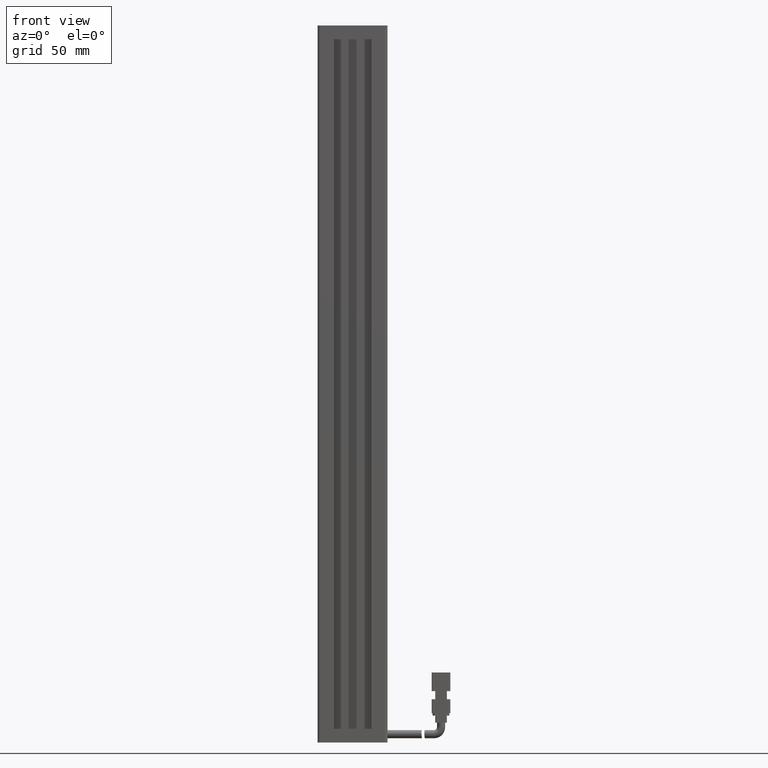
[diagram: clean part render]
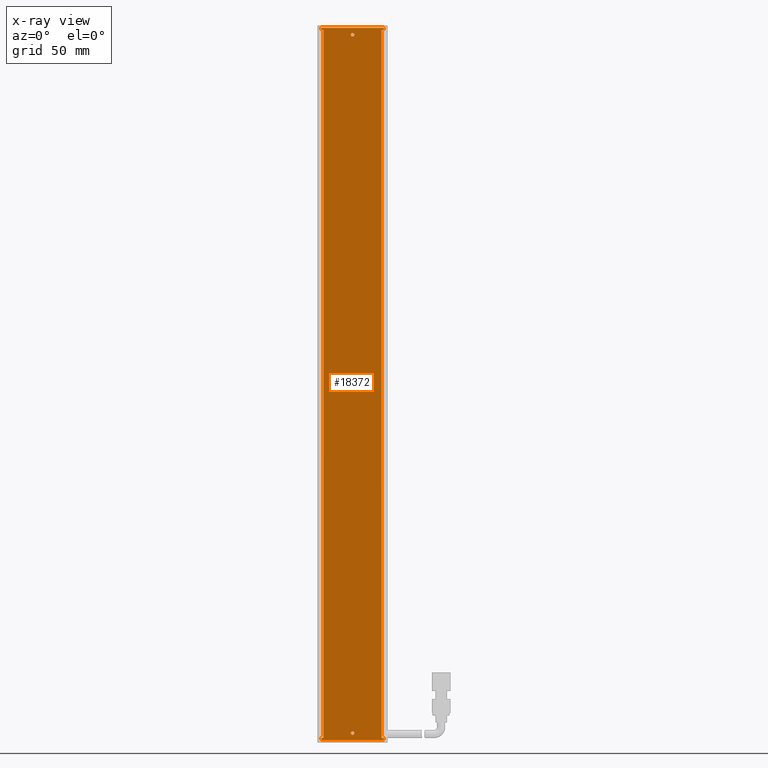
[diagram: x-ray — body ghosted, one internal face saturated and labeled with its STEP entity id]
A machine part, front view, then the same camera in x-ray: the body is ghosted and one INTERNAL B-rep face — a face not visible from any outside direction — is saturated and labeled: STEP entity #18372.
In plain terms, the highlighted planar face has unit normal (-0, 1, 0).
Its self-contained STEP definition (entity closure, byte-faithful):
#90 = VECTOR ( 'NONE', #8149, 1000.000000000000000 ) ;
#948 = AXIS2_PLACEMENT_3D ( 'NONE', #33537, #5164, #38325 ) ;
#1197 = CARTESIAN_POINT ( 'NONE',  ( 25.92537974683541800, 32.19594479660386100, 36.99999999999999300 ) ) ;
#1608 = LINE ( 'NONE', #47231, #14261 ) ;
#1644 = CARTESIAN_POINT ( 'NONE',  ( 27.52537974683538400, 32.19594479660386100, 38.00000000000003600 ) ) ;
#3374 = EDGE_CURVE ( 'NONE', #42633, #24721, #19030, .T. ) ;
#3476 = VECTOR ( 'NONE', #23441, 1000.000000000000000 ) ;
#3728 = EDGE_CURVE ( 'NONE', #15334, #55474, #37444, .T. ) ;
#4228 = VECTOR ( 'NONE', #38939, 1000.000000000000000 ) ;
#4721 = CARTESIAN_POINT ( 'NONE',  ( 27.52537974683541200, 32.19594479660386100, 38.00000000000003600 ) ) ;
#4784 = LINE ( 'NONE', #29316, #15907 ) ;
#5164 = DIRECTION ( 'NONE',  ( -0.0000000000000000000, -1.000000000000000000, -0.0000000000000000000 ) ) ;
#5824 = EDGE_CURVE ( 'NONE', #22413, #24452, #1608, .T. ) ;
#6212 = LINE ( 'NONE', #47616, #55113 ) ;
#6445 = AXIS2_PLACEMENT_3D ( 'NONE', #24557, #57628, #29323 ) ;
#6561 = EDGE_LOOP ( 'NONE', ( #49902, #19118 ) ) ;
#7205 = CARTESIAN_POINT ( 'NONE',  ( 40.92537974683542500, 32.19594479660386800, -267.0000000000000000 ) ) ;
#7509 = ORIENTED_EDGE ( 'NONE', *, *, #3374, .T. ) ;
#7885 = ORIENTED_EDGE ( 'NONE', *, *, #37988, .T. ) ;
#8149 = DIRECTION ( 'NONE',  ( 5.551115123125781500E-017, 0.0000000000000000000, 1.000000000000000000 ) ) ;
#8323 = FACE_BOUND ( 'NONE', #44951, .T. ) ;
#9795 = CIRCLE ( 'NONE', #52921, 0.7499999999999729100 ) ;
#9806 = LINE ( 'NONE', #1644, #22444 ) ;
#10604 = CARTESIAN_POINT ( 'NONE',  ( 40.92537974683541800, 32.19594479660386100, 35.00000000000002800 ) ) ;
#11256 = DIRECTION ( 'NONE',  ( -0.0000000000000000000, 1.000000000000000000, 0.0000000000000000000 ) ) ;
#11388 = VERTEX_POINT ( 'NONE', #42868 ) ;
#11600 = ORIENTED_EDGE ( 'NONE', *, *, #32679, .F. ) ;
#12266 = LINE ( 'NONE', #14413, #48557 ) ;
#13234 = EDGE_CURVE ( 'NONE', #24452, #56481, #49234, .T. ) ;
#14031 = EDGE_CURVE ( 'NONE', #52290, #38119, #12266, .T. ) ;
#14261 = VECTOR ( 'NONE', #56971, 1000.000000000000000 ) ;
#14398 = LINE ( 'NONE', #22312, #38139 ) ;
#14413 = CARTESIAN_POINT ( 'NONE',  ( 53.42537974683542500, 32.19594479660386800, 38.99999999999999300 ) ) ;
#15334 = VERTEX_POINT ( 'NONE', #46007 ) ;
#15378 = DIRECTION ( 'NONE',  ( 0.0000000000000000000, 0.0000000000000000000, 1.000000000000000000 ) ) ;
#15907 = VECTOR ( 'NONE', #34030, 1000.000000000000000 ) ;
#16021 = CARTESIAN_POINT ( 'NONE',  ( 40.92537974683536800, 32.19594479660386100, -264.2500000000000000 ) ) ;
#16150 = CARTESIAN_POINT ( 'NONE',  ( 28.42537974683542100, 32.19594479660386800, -267.0000000000000000 ) ) ;
#17243 = CARTESIAN_POINT ( 'NONE',  ( 54.32537974683541600, 32.19594479660386100, 38.00000000000003600 ) ) ;
#18372 = ADVANCED_FACE ( 'NONE', ( #33487, #8323, #19454 ), #25191, .F. ) ;
#18889 = EDGE_CURVE ( 'NONE', #41007, #46024, #37944, .T. ) ;
#19030 = LINE ( 'NONE', #39678, #30123 ) ;
#19118 = ORIENTED_EDGE ( 'NONE', *, *, #3728, .F. ) ;
#19193 = CARTESIAN_POINT ( 'NONE',  ( 27.52537974683536600, 32.19594479660386800, -267.0000000000000000 ) ) ;
#19412 = CIRCLE ( 'NONE', #59456, 0.7500000000000006700 ) ;
#19454 = FACE_BOUND ( 'NONE', #6561, .T. ) ;
#20012 = EDGE_CURVE ( 'NONE', #46024, #41007, #19412, .T. ) ;
#20802 = CARTESIAN_POINT ( 'NONE',  ( 40.92537974683541800, 32.19594479660386100, 35.75000000000002800 ) ) ;
#21205 = ORIENTED_EDGE ( 'NONE', *, *, #13234, .F. ) ;
#21414 = VERTEX_POINT ( 'NONE', #47049 ) ;
#22114 = CARTESIAN_POINT ( 'NONE',  ( 53.42537974683542500, 32.19594479660386100, -267.0000000000000000 ) ) ;
#22312 = CARTESIAN_POINT ( 'NONE',  ( 40.92537974683542500, 32.19594479660386800, 36.99999999999999300 ) ) ;
#22413 = VERTEX_POINT ( 'NONE', #4721 ) ;
#22444 = VECTOR ( 'NONE', #30088, 1000.000000000000000 ) ;
#22852 = ORIENTED_EDGE ( 'NONE', *, *, #28797, .T. ) ;
#23441 = DIRECTION ( 'NONE',  ( 1.000000000000000000, 0.0000000000000000000, 0.0000000000000000000 ) ) ;
#23648 = CARTESIAN_POINT ( 'NONE',  ( 54.32537974683541600, 32.19594479660386100, 38.00000000000003600 ) ) ;
#24123 = ORIENTED_EDGE ( 'NONE', *, *, #18889, .F. ) ;
#24239 = EDGE_CURVE ( 'NONE', #21414, #50593, #36484, .T. ) ;
#24452 = VERTEX_POINT ( 'NONE', #23648 ) ;
#24557 = CARTESIAN_POINT ( 'NONE',  ( 40.92537974683536800, 32.19594479660386100, -264.9999999999999400 ) ) ;
#24721 = VERTEX_POINT ( 'NONE', #16150 ) ;
#25091 = ORIENTED_EDGE ( 'NONE', *, *, #43817, .F. ) ;
#25191 = PLANE ( 'NONE',  #29982 ) ;
#25265 = ORIENTED_EDGE ( 'NONE', *, *, #20012, .F. ) ;
#25383 = EDGE_CURVE ( 'NONE', #55474, #15334, #9795, .T. ) ;
#25734 = ORIENTED_EDGE ( 'NONE', *, *, #43511, .T. ) ;
#26743 = EDGE_CURVE ( 'NONE', #38119, #46529, #52369, .T. ) ;
#26900 = DIRECTION ( 'NONE',  ( -0.0000000000000000000, -1.000000000000000000, -0.0000000000000000000 ) ) ;
#27029 = EDGE_LOOP ( 'NONE', ( #53050, #56539, #22852, #21205, #61425, #11600, #25734, #7509, #7885, #52957, #27390, #25091 ) ) ;
#27291 = CARTESIAN_POINT ( 'NONE',  ( 53.42537974683542500, 32.19594479660386800, 36.99999999999999300 ) ) ;
#27390 = ORIENTED_EDGE ( 'NONE', *, *, #29620, .F. ) ;
#28797 = EDGE_CURVE ( 'NONE', #52290, #56481, #53128, .T. ) ;
#29316 = CARTESIAN_POINT ( 'NONE',  ( 54.32537974683541600, 32.19594479660386100, 38.00000000000003600 ) ) ;
#29323 = DIRECTION ( 'NONE',  ( 0.0000000000000000000, 0.0000000000000000000, 1.000000000000000000 ) ) ;
#29466 = CARTESIAN_POINT ( 'NONE',  ( 28.42537974683542100, 32.19594479660386100, 36.99999999999999300 ) ) ;
#29620 = EDGE_CURVE ( 'NONE', #11388, #21414, #6212, .T. ) ;
#29721 = LINE ( 'NONE', #7205, #40823 ) ;
#29982 = AXIS2_PLACEMENT_3D ( 'NONE', #39660, #11256, #44408 ) ;
#30088 = DIRECTION ( 'NONE',  ( 5.551115123125781500E-017, 0.0000000000000000000, 1.000000000000000000 ) ) ;
#30123 = VECTOR ( 'NONE', #39878, 1000.000000000000000 ) ;
#31861 = DIRECTION ( 'NONE',  ( 1.000000000000000000, 0.0000000000000000000, -0.0000000000000000000 ) ) ;
#31980 = CARTESIAN_POINT ( 'NONE',  ( 27.52537974683538400, 32.19594479660386100, 38.00000000000003600 ) ) ;
#32530 = VERTEX_POINT ( 'NONE', #56780 ) ;
#32679 = EDGE_CURVE ( 'NONE', #32530, #22413, #9806, .T. ) ;
#33487 = FACE_OUTER_BOUND ( 'NONE', #27029, .T. ) ;
#33537 = CARTESIAN_POINT ( 'NONE',  ( 40.92537974683541800, 32.19594479660386100, 35.00000000000002800 ) ) ;
#34030 = DIRECTION ( 'NONE',  ( -5.551115123125781500E-017, -0.0000000000000000000, -1.000000000000000000 ) ) ;
#36484 = LINE ( 'NONE', #31980, #90 ) ;
#36668 = VECTOR ( 'NONE', #55119, 1000.000000000000000 ) ;
#37444 = CIRCLE ( 'NONE', #6445, 0.7499999999999729100 ) ;
#37944 = CIRCLE ( 'NONE', #948, 0.7500000000000006700 ) ;
#37988 = EDGE_CURVE ( 'NONE', #24721, #50593, #29721, .T. ) ;
#38119 = VERTEX_POINT ( 'NONE', #22114 ) ;
#38139 = VECTOR ( 'NONE', #31861, 1000.000000000000000 ) ;
#38325 = DIRECTION ( 'NONE',  ( 0.0000000000000000000, 0.0000000000000000000, 1.000000000000000000 ) ) ;
#38939 = DIRECTION ( 'NONE',  ( 1.000000000000000000, -0.0000000000000000000, 0.0000000000000000000 ) ) ;
#39660 = CARTESIAN_POINT ( 'NONE',  ( 54.32537974683541600, 32.19594479660386100, 38.00000000000003600 ) ) ;
#39678 = CARTESIAN_POINT ( 'NONE',  ( 28.42537974683542100, 32.19594479660386800, 38.99999999999999300 ) ) ;
#39878 = DIRECTION ( 'NONE',  ( -0.0000000000000000000, -0.0000000000000000000, -1.000000000000000000 ) ) ;
#40823 = VECTOR ( 'NONE', #45067, 1000.000000000000000 ) ;
#41007 = VERTEX_POINT ( 'NONE', #57677 ) ;
#41680 = CARTESIAN_POINT ( 'NONE',  ( 54.32537974683541600, 32.19594479660386100, 36.99999999999999300 ) ) ;
#42633 = VERTEX_POINT ( 'NONE', #29466 ) ;
#42868 = CARTESIAN_POINT ( 'NONE',  ( 54.32537974683538100, 32.19594479660386100, -267.9999999999999400 ) ) ;
#43511 = EDGE_CURVE ( 'NONE', #32530, #42633, #14398, .T. ) ;
#43711 = DIRECTION ( 'NONE',  ( -0.0000000000000000000, -1.000000000000000000, -0.0000000000000000000 ) ) ;
#43817 = EDGE_CURVE ( 'NONE', #46529, #11388, #4784, .T. ) ;
#44408 = DIRECTION ( 'NONE',  ( 5.551115123125781500E-017, 0.0000000000000000000, 1.000000000000000000 ) ) ;
#44951 = EDGE_LOOP ( 'NONE', ( #25265, #24123 ) ) ;
#45067 = DIRECTION ( 'NONE',  ( -1.000000000000000000, -0.0000000000000000000, 0.0000000000000000000 ) ) ;
#46007 = CARTESIAN_POINT ( 'NONE',  ( 40.92537974683536800, 32.19594479660386100, -265.7499999999999400 ) ) ;
#46024 = VERTEX_POINT ( 'NONE', #20802 ) ;
#46529 = VERTEX_POINT ( 'NONE', #57734 ) ;
#47049 = CARTESIAN_POINT ( 'NONE',  ( 27.52537974683536600, 32.19594479660386100, -267.9999999999999400 ) ) ;
#47231 = CARTESIAN_POINT ( 'NONE',  ( 54.32537974683541600, 32.19594479660386100, 38.00000000000003600 ) ) ;
#47616 = CARTESIAN_POINT ( 'NONE',  ( 54.32537974683540900, 32.19594479660386100, -267.9999999999999400 ) ) ;
#48557 = VECTOR ( 'NONE', #52302, 1000.000000000000000 ) ;
#49234 = LINE ( 'NONE', #17243, #36668 ) ;
#49902 = ORIENTED_EDGE ( 'NONE', *, *, #25383, .F. ) ;
#50593 = VERTEX_POINT ( 'NONE', #19193 ) ;
#52290 = VERTEX_POINT ( 'NONE', #27291 ) ;
#52302 = DIRECTION ( 'NONE',  ( -0.0000000000000000000, -0.0000000000000000000, -1.000000000000000000 ) ) ;
#52369 = LINE ( 'NONE', #56556, #3476 ) ;
#52921 = AXIS2_PLACEMENT_3D ( 'NONE', #55213, #26900, #60002 ) ;
#52957 = ORIENTED_EDGE ( 'NONE', *, *, #24239, .F. ) ;
#53050 = ORIENTED_EDGE ( 'NONE', *, *, #26743, .F. ) ;
#53128 = LINE ( 'NONE', #1197, #4228 ) ;
#55113 = VECTOR ( 'NONE', #57161, 1000.000000000000000 ) ;
#55119 = DIRECTION ( 'NONE',  ( -5.551115123125781500E-017, -0.0000000000000000000, -1.000000000000000000 ) ) ;
#55213 = CARTESIAN_POINT ( 'NONE',  ( 40.92537974683536800, 32.19594479660386100, -264.9999999999999400 ) ) ;
#55474 = VERTEX_POINT ( 'NONE', #16021 ) ;
#56481 = VERTEX_POINT ( 'NONE', #41680 ) ;
#56539 = ORIENTED_EDGE ( 'NONE', *, *, #14031, .F. ) ;
#56556 = CARTESIAN_POINT ( 'NONE',  ( 40.92537974683542500, 32.19594479660386800, -267.0000000000000000 ) ) ;
#56780 = CARTESIAN_POINT ( 'NONE',  ( 27.52537974683536600, 32.19594479660386800, 36.99999999999999300 ) ) ;
#56971 = DIRECTION ( 'NONE',  ( 1.000000000000000000, 0.0000000000000000000, -5.551115123125781500E-017 ) ) ;
#57161 = DIRECTION ( 'NONE',  ( -1.000000000000000000, -0.0000000000000000000, 5.551115123125781500E-017 ) ) ;
#57628 = DIRECTION ( 'NONE',  ( -0.0000000000000000000, -1.000000000000000000, -0.0000000000000000000 ) ) ;
#57677 = CARTESIAN_POINT ( 'NONE',  ( 40.92537974683541800, 32.19594479660386100, 34.25000000000002800 ) ) ;
#57734 = CARTESIAN_POINT ( 'NONE',  ( 54.32537974683540900, 32.19594479660386100, -267.0000000000000000 ) ) ;
#59456 = AXIS2_PLACEMENT_3D ( 'NONE', #10604, #43711, #15378 ) ;
#60002 = DIRECTION ( 'NONE',  ( 0.0000000000000000000, 0.0000000000000000000, 1.000000000000000000 ) ) ;
#61425 = ORIENTED_EDGE ( 'NONE', *, *, #5824, .F. ) ;